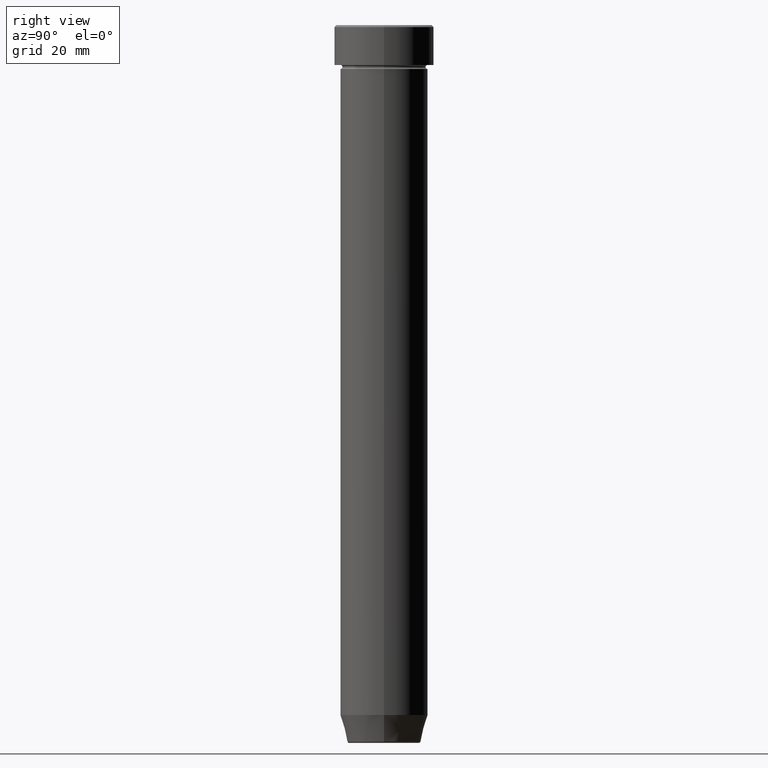
[diagram: clean part render]
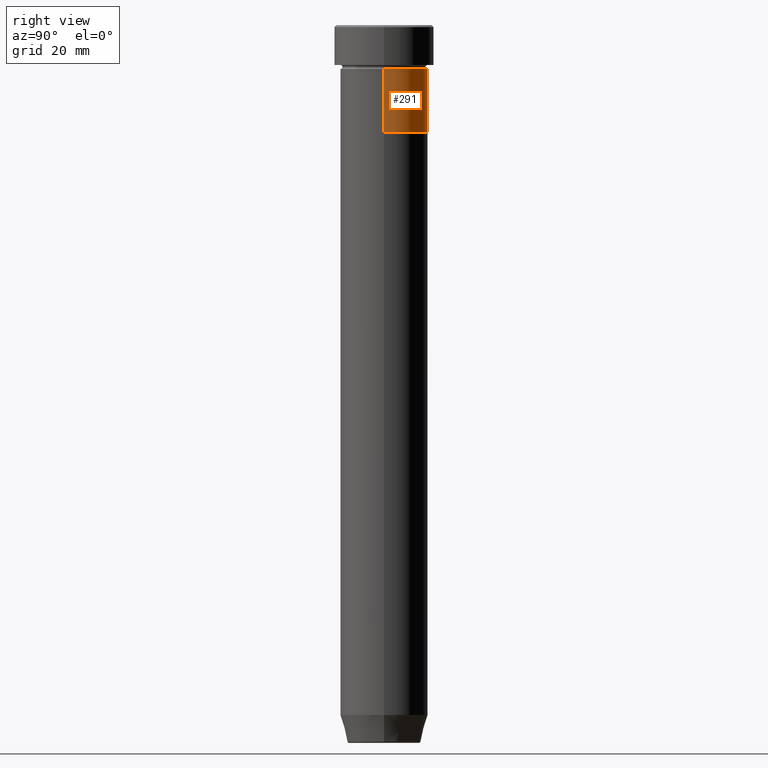
[diagram: same view with one face highlighted and labeled with its STEP entity id]
A machine part, right view. The second image highlights one B-rep face of the part: STEP entity #291.
In plain terms, the highlighted cylindrical surface (partial cylindrical patch) has radius 11 mm, axis along (-0, -0, 1).
Its self-contained STEP definition (entity closure, byte-faithful):
#20 = LINE ( 'NONE', #515, #250 ) ;
#49 = EDGE_CURVE ( 'NONE', #93, #286, #20, .T. ) ;
#56 = CARTESIAN_POINT ( 'NONE',  ( 11.00000000000000000, 0.000000000000000000, 0.000000000000000000 ) ) ;
#64 = CARTESIAN_POINT ( 'NONE',  ( 0.000000000000000000, 0.000000000000000000, -11.00000000000000000 ) ) ;
#93 = VERTEX_POINT ( 'NONE', #113 ) ;
#113 = CARTESIAN_POINT ( 'NONE',  ( -11.00000000000000000, 1.347111479062088405E-15, -27.00000000000000000 ) ) ;
#127 = CARTESIAN_POINT ( 'NONE',  ( -11.00000000000000000, 1.347111479062088405E-15, -11.00000000000000000 ) ) ;
#139 = DIRECTION ( 'NONE',  ( -0.000000000000000000, -0.000000000000000000, 1.000000000000000000 ) ) ;
#152 = DIRECTION ( 'NONE',  ( -0.000000000000000000, -0.000000000000000000, 1.000000000000000000 ) ) ;
#168 = EDGE_CURVE ( 'NONE', #482, #286, #397, .T. ) ;
#208 = CIRCLE ( 'NONE', #305, 11.00000000000000000 ) ;
#213 = DIRECTION ( 'NONE',  ( 1.000000000000000000, 0.000000000000000000, 0.000000000000000000 ) ) ;
#222 = CYLINDRICAL_SURFACE ( 'NONE', #343, 11.00000000000000000 ) ;
#240 = LINE ( 'NONE', #56, #445 ) ;
#243 = CARTESIAN_POINT ( 'NONE',  ( 0.000000000000000000, 0.000000000000000000, -27.00000000000000000 ) ) ;
#250 = VECTOR ( 'NONE', #287, 1000.000000000000000 ) ;
#286 = VERTEX_POINT ( 'NONE', #127 ) ;
#287 = DIRECTION ( 'NONE',  ( -0.000000000000000000, -0.000000000000000000, 1.000000000000000000 ) ) ;
#291 = ADVANCED_FACE ( 'NONE', ( #589 ), #222, .T. ) ;
#305 = AXIS2_PLACEMENT_3D ( 'NONE', #243, #341, #522 ) ;
#341 = DIRECTION ( 'NONE',  ( -0.000000000000000000, -0.000000000000000000, 1.000000000000000000 ) ) ;
#343 = AXIS2_PLACEMENT_3D ( 'NONE', #399, #139, #213 ) ;
#359 = ORIENTED_EDGE ( 'NONE', *, *, #437, .T. ) ;
#368 = EDGE_LOOP ( 'NONE', ( #359, #578, #570, #380 ) ) ;
#380 = ORIENTED_EDGE ( 'NONE', *, *, #511, .F. ) ;
#384 = DIRECTION ( 'NONE',  ( -0.000000000000000000, -0.000000000000000000, 1.000000000000000000 ) ) ;
#397 = CIRCLE ( 'NONE', #478, 11.00000000000000000 ) ;
#399 = CARTESIAN_POINT ( 'NONE',  ( 0.000000000000000000, 0.000000000000000000, 0.000000000000000000 ) ) ;
#411 = CARTESIAN_POINT ( 'NONE',  ( 11.00000000000000000, 0.000000000000000000, -27.00000000000000000 ) ) ;
#432 = VERTEX_POINT ( 'NONE', #411 ) ;
#437 = EDGE_CURVE ( 'NONE', #432, #93, #208, .T. ) ;
#445 = VECTOR ( 'NONE', #152, 1000.000000000000000 ) ;
#474 = DIRECTION ( 'NONE',  ( 1.000000000000000000, 0.000000000000000000, 0.000000000000000000 ) ) ;
#478 = AXIS2_PLACEMENT_3D ( 'NONE', #64, #384, #474 ) ;
#482 = VERTEX_POINT ( 'NONE', #526 ) ;
#511 = EDGE_CURVE ( 'NONE', #432, #482, #240, .T. ) ;
#515 = CARTESIAN_POINT ( 'NONE',  ( -11.00000000000000000, 1.347111479062088405E-15, 0.000000000000000000 ) ) ;
#522 = DIRECTION ( 'NONE',  ( 1.000000000000000000, 0.000000000000000000, 0.000000000000000000 ) ) ;
#526 = CARTESIAN_POINT ( 'NONE',  ( 11.00000000000000000, 0.000000000000000000, -11.00000000000000000 ) ) ;
#570 = ORIENTED_EDGE ( 'NONE', *, *, #168, .F. ) ;
#578 = ORIENTED_EDGE ( 'NONE', *, *, #49, .T. ) ;
#589 = FACE_OUTER_BOUND ( 'NONE', #368, .T. ) ;